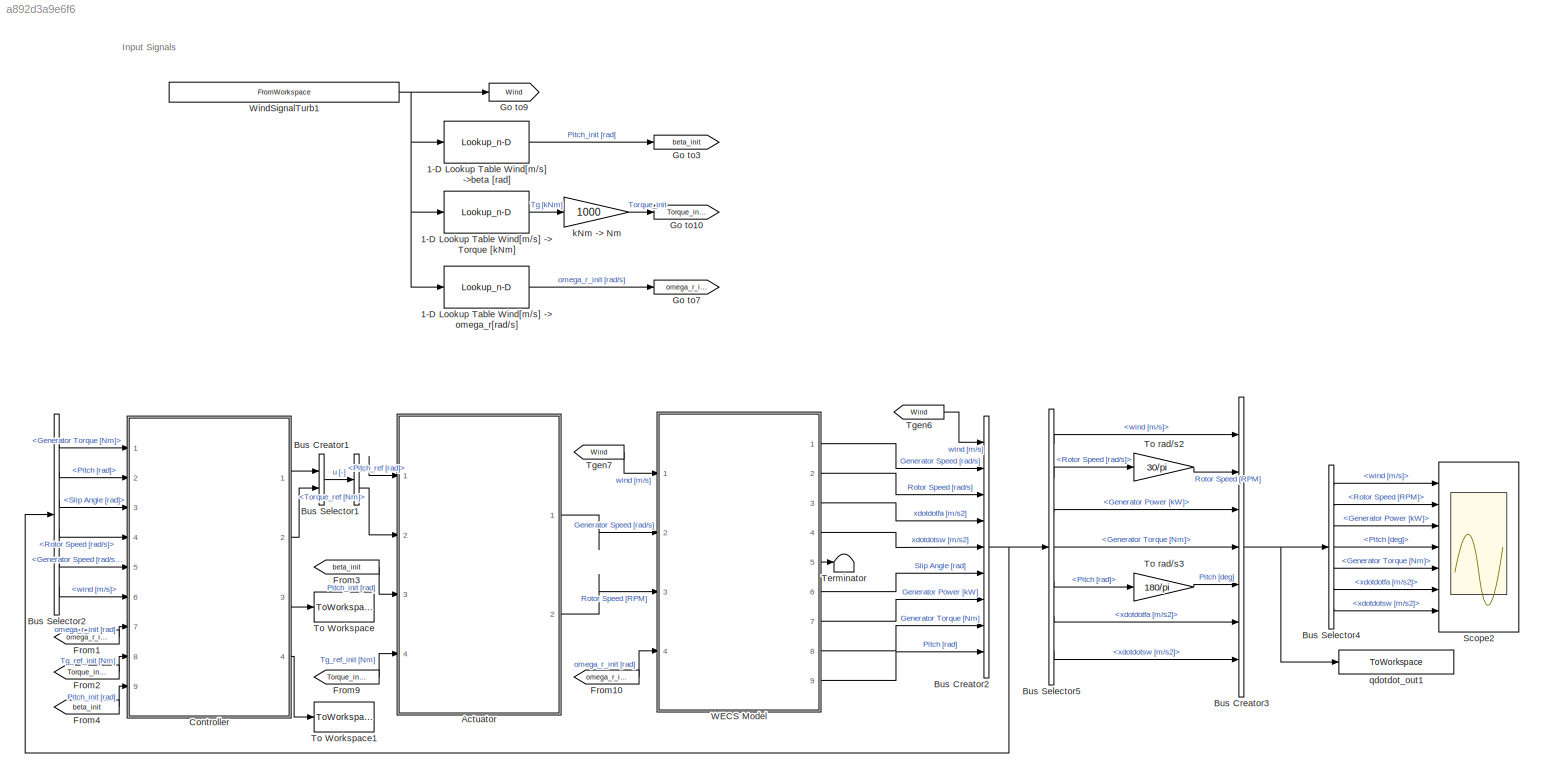
MODEL slx_a892d3a9e6f6
KIND model
CONFIG AbsTol = auto
CONFIG EnableMultiTasking = off
CONFIG FixedStep = DT
CONFIG MaxStep = auto
CONFIG MinStep = auto
CONFIG RelTol = 1e-3
CONFIG SampleTimeConstraint = Unconstrained
CONFIG Solver = FixedStepAuto
CONFIG SolverName = FixedStepAuto
CONFIG StartTime = 0.0
CONFIG StopTime = 400
BLOCK [Lookup_n-D] 1-D Lookup Table Wind[m//s] -> Torque [kNm]
  BreakpointsForDimension1 = Lin_points.V
  BreakpointsForDimension2 = Rotor_Lambda
  InternalRulePriority = Speed
  NumberOfTableDimensions = 1
  Ports = [1, 1]
  RndMeth = Simplest
  Table = Lin_points.Torque
BLOCK [Lookup_n-D] 1-D Lookup Table Wind[m//s] -> omega_r[rad//s]
  BreakpointsForDimension1 = Lin_points.V
  BreakpointsForDimension2 = Rotor_Lambda
  InternalRulePriority = Speed
  NumberOfTableDimensions = 1
  Ports = [1, 1]
  RndMeth = Simplest
  Table = Lin_points.RSpeed
BLOCK [Lookup_n-D] 1-D Lookup Table Wind[m//s] ->beta [rad]
  BreakpointsForDimension1 = Lin_points.V
  BreakpointsForDimension2 = Rotor_Lambda
  InternalRulePriority = Speed
  NumberOfTableDimensions = 1
  Ports = [1, 1]
  RndMeth = Simplest
  Table = Lin_points.Pitch
BLOCK [ModelReference] Actuator
  ModelNameDialog = Mdl_Actuator.slx
  ModelReferenceVersion = 1.7
  Ports = [4, 2]
BLOCK [BusCreator] Bus Creator1
  DisplayOption = bar
  InheritFromInputs = on
  Inputs = 2
  Ports = [2, 1]
BLOCK [BusCreator] Bus Creator2
  DisplayOption = bar
  InheritFromInputs = on
  Inputs = 9
  Ports = [9, 1]
BLOCK [BusCreator] Bus Creator3
  DisplayOption = bar
  InheritFromInputs = on
  Inputs = 7
  Ports = [7, 1]
BLOCK [BusSelector] Bus Selector1
  OutputAsBus = off
  OutputSignals = Pitch_ref  [rad],Torque_ref [Nm]
  Ports = [1, 2]
BLOCK [BusSelector] Bus Selector2
  OutputAsBus = off
  OutputSignals = Generator Torque  [Nm],Pitch [rad],Slip Angle [rad],Rotor Speed [rad/s],Generator Speed [rad/s],wind [m/s]
  Ports = [1, 6]
BLOCK [BusSelector] Bus Selector4
  OutputAsBus = off
  OutputSignals = wind [m/s],Rotor Speed [RPM],Generator Power [kW],Pitch [deg],Generator Torque  [Nm],xdotdotfa [m/s2],xdotdotsw [m/s2]
  Ports = [1, 7]
BLOCK [BusSelector] Bus Selector5
  OutputAsBus = off
  OutputSignals = wind [m/s],Rotor Speed [rad/s],Generator Power [kW],Generator Torque  [Nm],Pitch [rad],xdotdotfa [m/s2],xdotdotsw [m/s2]
  Ports = [1, 7]
BLOCK [ModelReference] Controller
  ModelNameDialog = MdlCtrl_qLPVMPC.slx
  ModelReferenceVersion = 1.21
  Ports = [9, 4]
BLOCK [From] From1
  CloseFcn = tagdialog Close
  GotoTag = omega_r_init
BLOCK [From] From10
  CloseFcn = tagdialog Close
  GotoTag = omega_r_init
BLOCK [From] From2
  CloseFcn = tagdialog Close
  GotoTag = Torque_init
BLOCK [From] From3
  CloseFcn = tagdialog Close
  GotoTag = beta_init
BLOCK [From] From4
  CloseFcn = tagdialog Close
  GotoTag = beta_init
BLOCK [From] From9
  CloseFcn = tagdialog Close
  GotoTag = Torque_init
BLOCK [Goto] Go to10
  GotoTag = Torque_init
BLOCK [Goto] Go to3
  GotoTag = beta_init
BLOCK [Goto] Go to7
  GotoTag = omega_r_init
BLOCK [Goto] Go to9
  GotoTag = Wind
BLOCK [Scope] Scope2
  Floating = off
  NumInputPorts = 7
  Ports = [7]
  ScopeSpecificationString = Simulink.scopes.TimeScopeBlockCfg('CurrentConfiguration', extmgr.ConfigurationSet(extmgr.Configuration('Core','General UI',true),extmgr.Configuration('Core','Source UI',true),extmgr.Configuration('Sources','WiredSimulink',true),extmgr.Configuration('Visuals','Time Domain',true,'SerializedDisplays',{struct('MinYLimReal','1.6','MaxYLimReal','17.6','YLabelReal','','MinYLimMag','1.6','MaxYLimMag','17....<+5368ch>
  Tag = Scope
BLOCK [Terminator] Terminator
BLOCK [From] Tgen6
  CloseFcn = tagdialog Close
  GotoTag = Wind
BLOCK [From] Tgen7
  CloseFcn = tagdialog Close
  GotoTag = Wind
BLOCK [ToWorkspace] To Workspace
  FixptAsFi = on
  MaxDataPoints = inf
  Ports = [1]
  SampleTime = -1
  SaveFormat = Timeseries
  VariableName = tictoc_LPVMPC
BLOCK [ToWorkspace] To Workspace1
  FixptAsFi = on
  MaxDataPoints = inf
  Ports = [1]
  SampleTime = -1
  SaveFormat = Timeseries
  VariableName = GenPwrRef
BLOCK [Gain] To rad//s2
  Gain = 30/pi
  OutDataTypeStr = Inherit: Inherit via internal rule
  ParamDataTypeStr = Inherit: Inherit via internal rule
  SaturateOnIntegerOverflow = off
BLOCK [Gain] To rad//s3
  Gain = 180/pi
  OutDataTypeStr = Inherit: Inherit via internal rule
  ParamDataTypeStr = Inherit: Inherit via internal rule
  SaturateOnIntegerOverflow = off
BLOCK [ModelReference] WECS Model
  ModelNameDialog = Mdl_BianchiOL.slx
  ModelReferenceVersion = 1.59
  Ports = [4, 9]
BLOCK [FromWorkspace] WindSignalTurb1
  OutputAfterFinalValue = Holding final value
  SampleTime = DT
  VariableName = [OutTable.Time OutTable.Wind1VelX]
  ZeroCross = on
BLOCK [Gain] kNm -> Nm
  Gain = 1000
  OutDataTypeStr = Inherit: Inherit via internal rule
  ParamDataTypeStr = Inherit: Inherit via internal rule
  SaturateOnIntegerOverflow = off
BLOCK [ToWorkspace] qdotdot_out1
  MaxDataPoints = inf
  Ports = [1]
  SampleTime = -1
  VariableName = OutDataTest
ANNOTATION (root): Input Signals
LINE 1-D Lookup Table Wind[m//s] -> Torque [kNm]:1 -> kNm -> Nm:1
LINE 1-D Lookup Table Wind[m//s] -> omega_r[rad//s]:1 -> Go to7:1
LINE 1-D Lookup Table Wind[m//s] ->beta [rad]:1 -> Go to3:1
LINE Actuator:1 -> WECS Model:2
LINE Actuator:2 -> WECS Model:3
LINE Bus Creator1:1 -> Bus Selector1:1
NET Bus Creator2:1 -> Bus Selector2:1, Bus Selector5:1
NET Bus Creator3:1 -> Bus Selector4:1, qdotdot_out1:1
LINE Bus Selector1:1 -> Actuator:1
LINE Bus Selector1:2 -> Actuator:2
LINE Bus Selector2:1 -> Controller:1
LINE Bus Selector2:2 -> Controller:2
LINE Bus Selector2:3 -> Controller:3
LINE Bus Selector2:4 -> Controller:4
LINE Bus Selector2:5 -> Controller:5
LINE Bus Selector2:6 -> Controller:6
LINE Bus Selector4:1 -> Scope2:1
LINE Bus Selector4:2 -> Scope2:2
LINE Bus Selector4:3 -> Scope2:3
LINE Bus Selector4:4 -> Scope2:4
LINE Bus Selector4:5 -> Scope2:5
LINE Bus Selector4:6 -> Scope2:6
LINE Bus Selector4:7 -> Scope2:7
LINE Bus Selector5:1 -> Bus Creator3:1
LINE Bus Selector5:2 -> To rad//s2:1
LINE Bus Selector5:3 -> Bus Creator3:3
LINE Bus Selector5:4 -> Bus Creator3:4
LINE Bus Selector5:5 -> To rad//s3:1
LINE Bus Selector5:6 -> Bus Creator3:6
LINE Bus Selector5:7 -> Bus Creator3:7
LINE Controller:1 -> Bus Creator1:1
LINE Controller:2 -> Bus Creator1:2
LINE Controller:3 -> To Workspace:1
LINE Controller:4 -> To Workspace1:1
LINE From10:1 -> WECS Model:4
LINE From1:1 -> Controller:7
LINE From2:1 -> Controller:8
LINE From3:1 -> Actuator:3
LINE From4:1 -> Controller:9
LINE From9:1 -> Actuator:4
LINE Tgen6:1 -> Bus Creator2:1
LINE Tgen7:1 -> WECS Model:1
LINE To rad//s2:1 -> Bus Creator3:2
LINE To rad//s3:1 -> Bus Creator3:5
LINE WECS Model:1 -> Bus Creator2:2
LINE WECS Model:2 -> Bus Creator2:3
LINE WECS Model:3 -> Bus Creator2:4
LINE WECS Model:4 -> Bus Creator2:5
LINE WECS Model:5 -> Terminator:1
LINE WECS Model:6 -> Bus Creator2:6
LINE WECS Model:7 -> Bus Creator2:7
LINE WECS Model:8 -> Bus Creator2:8
LINE WECS Model:9 -> Bus Creator2:9
NET WindSignalTurb1:1 -> 1-D Lookup Table Wind[m//s] -> Torque [kNm]:1, 1-D Lookup Table Wind[m//s] -> omega_r[rad//s]:1, 1-D Lookup Table Wind[m//s] ->beta [rad]:1, Go to9:1
LINE kNm -> Nm:1 -> Go to10:1
note: NET lines group one-source signal fan-out (src -> all destinations, sorted); 1:1 wires keep LINE
